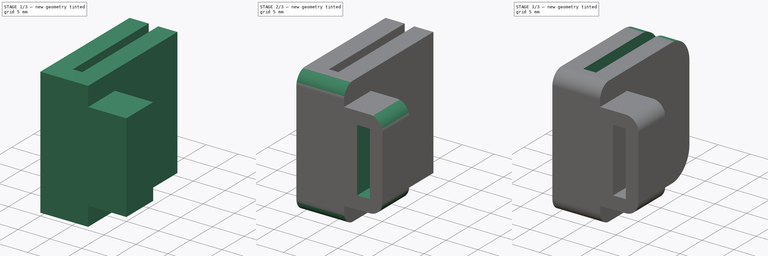
[diagram: build sequence overview — one tinted view per stage of 3, left to right]
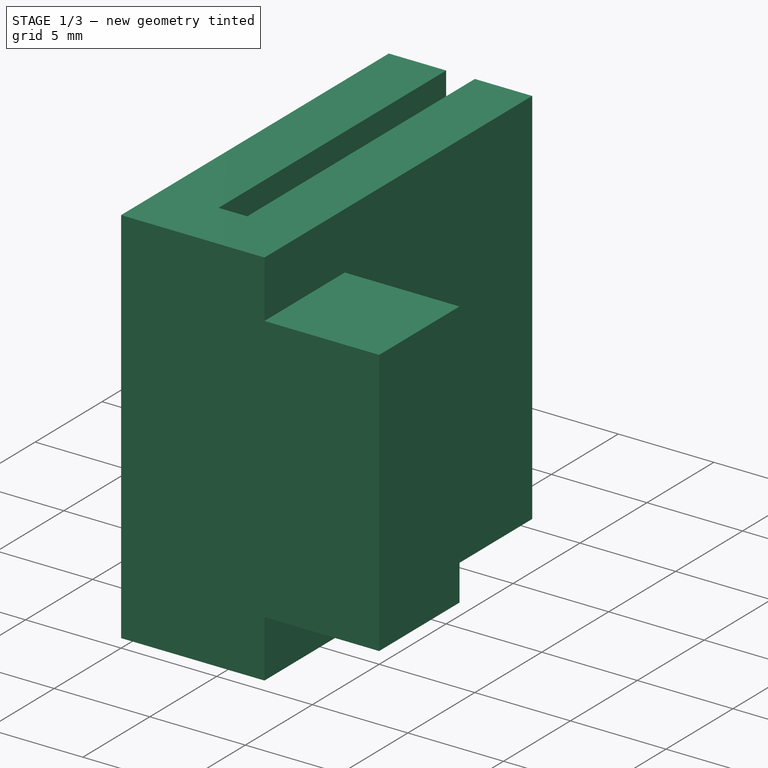
[diagram: stage 1 of 3 — iso view after this stage's code; geometry added in this stage tinted green]
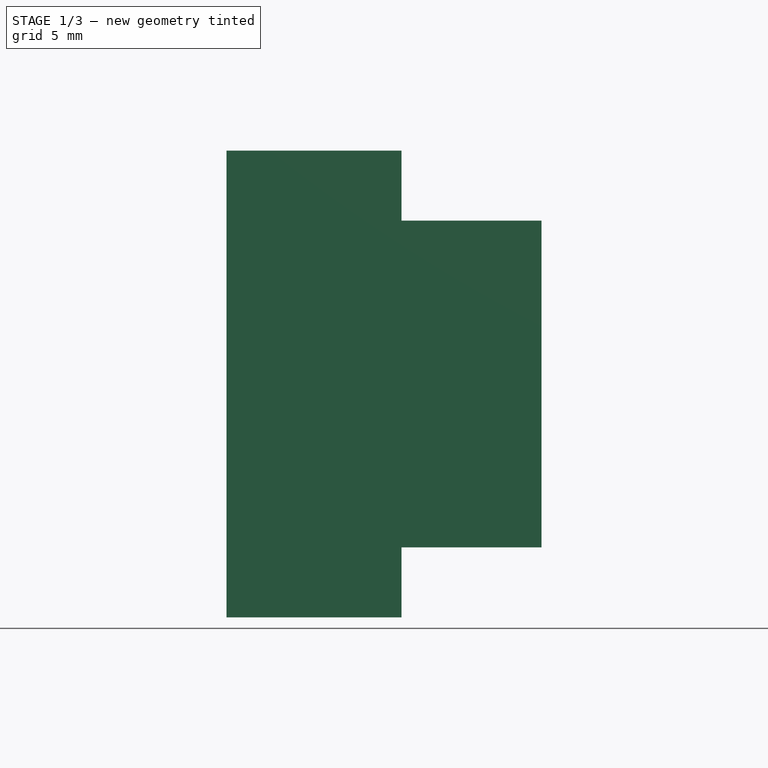
[diagram: stage 1 of 3 — front view after this stage's code; geometry added in this stage tinted green]
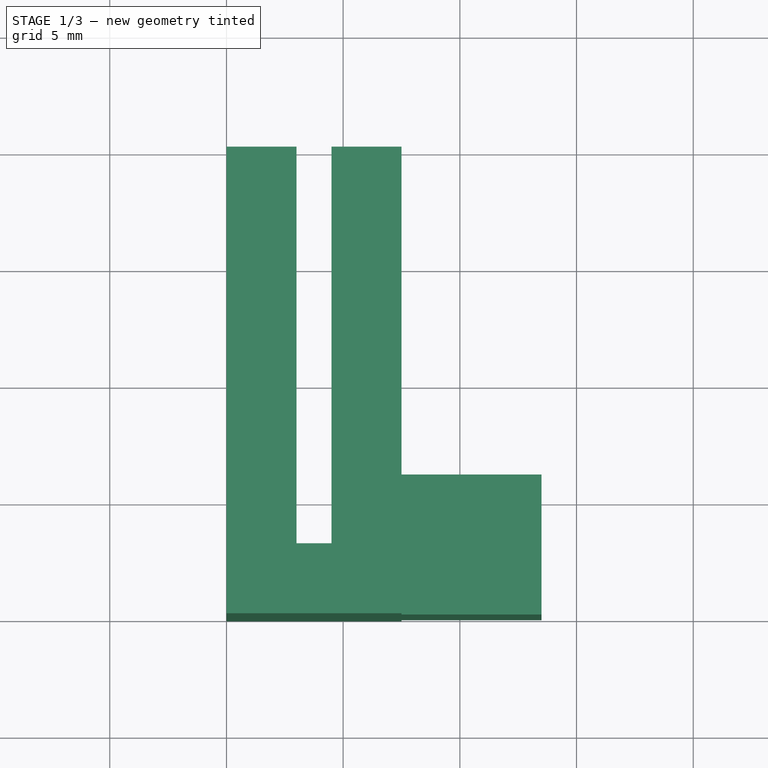
[diagram: stage 1 of 3 — top view after this stage's code; geometry added in this stage tinted green]
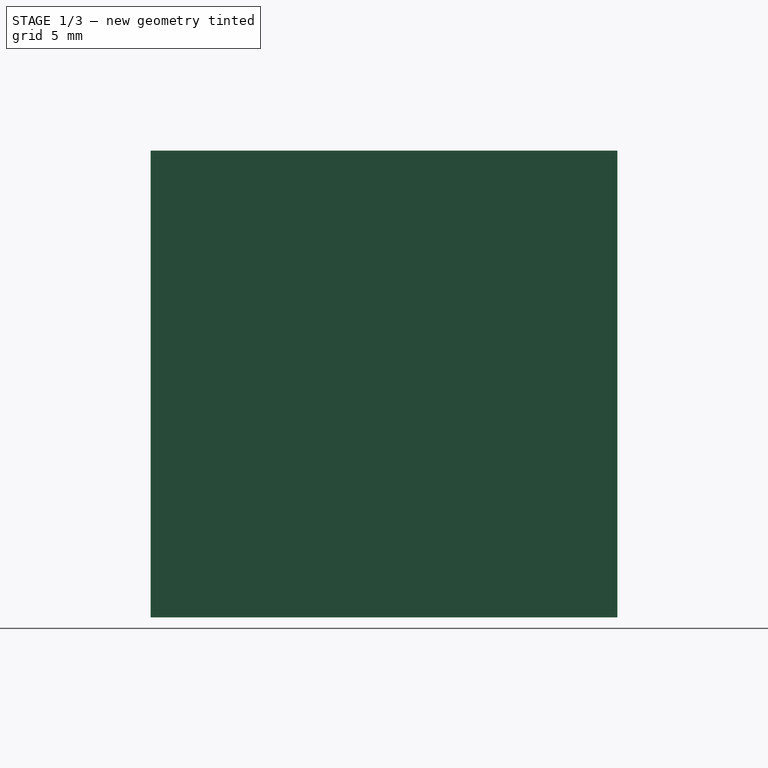
[diagram: stage 1 of 3 — right view after this stage's code; geometry added in this stage tinted green]
FCSTD DOCUMENT  (FreeCAD 0.20R29177 (Git))
Label: cabel_clips
License: All rights reserved
LicenseURL: http://en.wikipedia.org/wiki/All_rights_reserved
objects: Sketcher::SketchObject×4, PartDesign::Fillet×3, PartDesign::Pad×2, PartDesign::Pocket×2, PartDesign::Plane×1, PartDesign::Body×1
note: 20 computed .brp shape members not serialized (recipe doc carries the construction recipe); baked Part::Feature solids carry a one-line shape summary decoded from their .brp

FEATURE [Sketcher::SketchObject] Sketch
  FullyConstrained = true
  MapMode = 5
  Support = -> [XY_Plane]
  sketch-geometry (8):
    g0: LineSegment StartX=0 StartY=0 StartZ=0 EndX=0 EndY=20 EndZ=0
    g1: LineSegment StartX=0 StartY=20 StartZ=0 EndX=3 EndY=20 EndZ=0
    g2: LineSegment StartX=3 StartY=20 StartZ=0 EndX=3 EndY=3 EndZ=0
    g3: LineSegment StartX=3 StartY=3 StartZ=0 EndX=4.5 EndY=3 EndZ=0
    g4: LineSegment StartX=4.5 StartY=3 StartZ=0 EndX=4.5 EndY=20 EndZ=0
    g5: LineSegment StartX=4.5 StartY=20 StartZ=0 EndX=7.5 EndY=20 EndZ=0
    g6: LineSegment StartX=7.5 StartY=20 StartZ=0 EndX=7.5 EndY=0 EndZ=0
    g7: LineSegment StartX=7.5 StartY=0 StartZ=0 EndX=0 EndY=0 EndZ=0
  constraints (24):
    c: Coincident(g0,g-1)
    c: PointOnObject(g0,g-2)
    c: DistanceY(g0,g0) = 20
    c: Coincident(g1,g0)
    c: Horizontal(g1)
    c: Coincident(g2,g1)
    c: Vertical(g2)
    c: Coincident(g3,g2)
    c: Horizontal(g3)
    c: Vertical(g4)
    c: DistanceX(g1,g1) = 3
    c: Coincident(g5,g4)
    c: Horizontal(g5)
    c: DistanceX(g5,g5) = 3
    c: Coincident(g6,g5)
    c: PointOnObject(g6,g-1)
    c: Vertical(g6)
    c: Coincident(g7,g6)
    c: Coincident(g7,g0)
    c: DistanceX(g7,g7) = 7.5
    c: DistanceY(g6,g6) = 20
    c: DistanceY(g4,g4) = 17
    c: DistanceY(g2,g2) = 17
    c: DistanceX(g3,g3) = 1.5
FEATURE [PartDesign::Pad] Pad
  Direction = (0,0,1)
  Length = 20
  Length2 = 10
  Profile = -> Sketch
  ReferenceAxis = -> Sketch [N_Axis]
  Type = 0
FEATURE [Sketcher::SketchObject] Sketch001
  FullyConstrained = false
  MapMode = 5
  Placement = pos=(7.5,0,0) rot=(0.57735,0.57735,0.57735;2.0944rad)
  Support = -> [Pad]
  sketch-geometry (4):
    g0: LineSegment StartX=0 StartY=17 StartZ=0 EndX=6 EndY=17 EndZ=0
    g1: LineSegment StartX=6 StartY=17 StartZ=0 EndX=6 EndY=3 EndZ=0
    g2: LineSegment StartX=6 StartY=3 StartZ=0 EndX=0 EndY=3 EndZ=0
    g3: LineSegment StartX=0 StartY=3 StartZ=0 EndX=0 EndY=17 EndZ=0
  constraints (9):
    c: Coincident(g0,g1)
    c: Coincident(g1,g2)
    c: Coincident(g2,g3)
    c: Coincident(g3,g0)
    c: Horizontal(g0)
    c: Horizontal(g2)
    c: Vertical(g1)
    c: Vertical(g3)
    c: PointOnObject(g0,g-2)
FEATURE [PartDesign::Pad] Pad001
  BaseFeature = -> Pad
  Direction = (1,0,0)
  Length = 6
  Length2 = 10
  Profile = -> Sketch001
  ReferenceAxis = -> Sketch001 [N_Axis]
  Type = 0
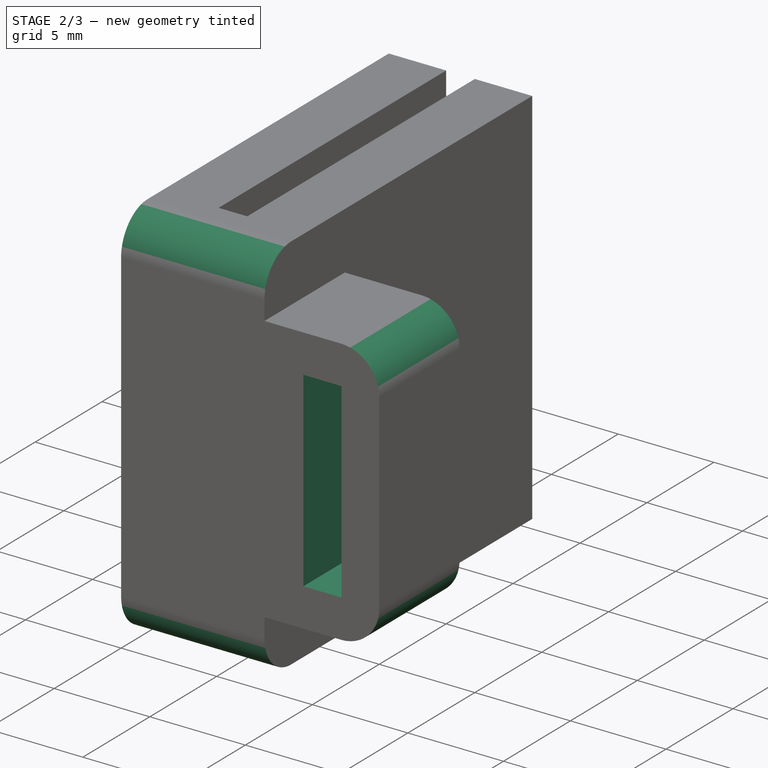
[diagram: stage 2 of 3 — iso view after this stage's code; geometry added in this stage tinted green]
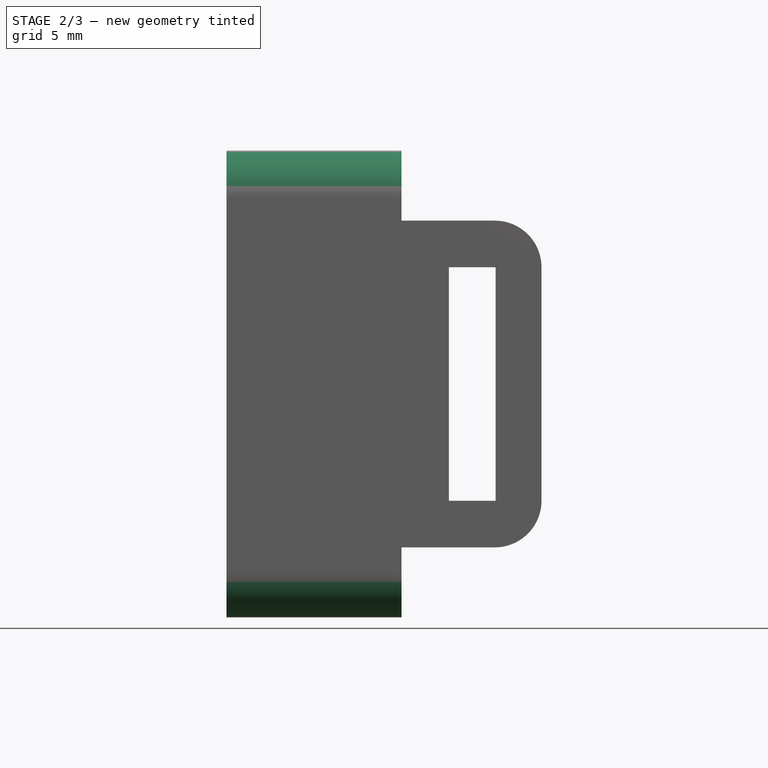
[diagram: stage 2 of 3 — front view after this stage's code; geometry added in this stage tinted green]
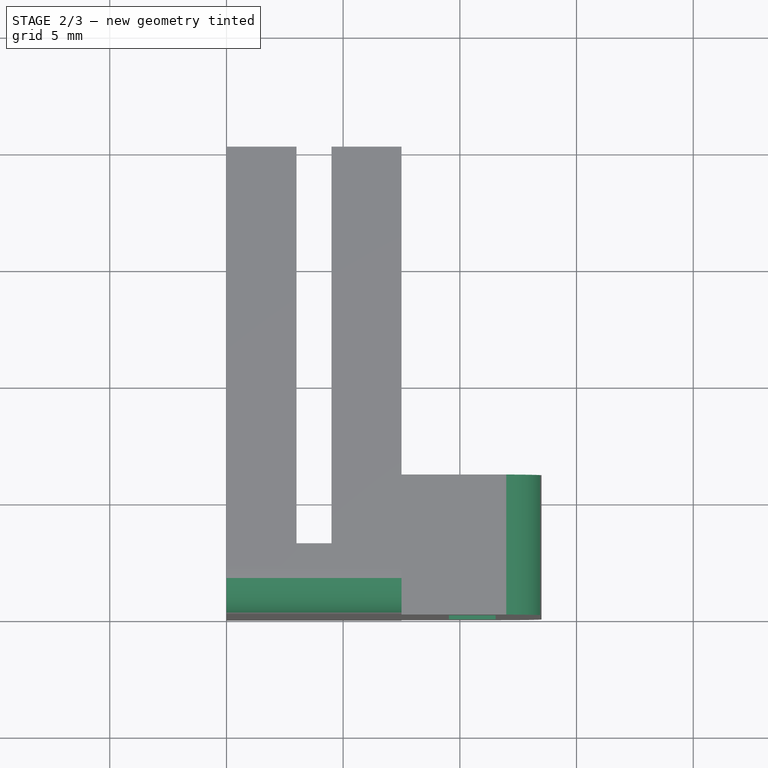
[diagram: stage 2 of 3 — top view after this stage's code; geometry added in this stage tinted green]
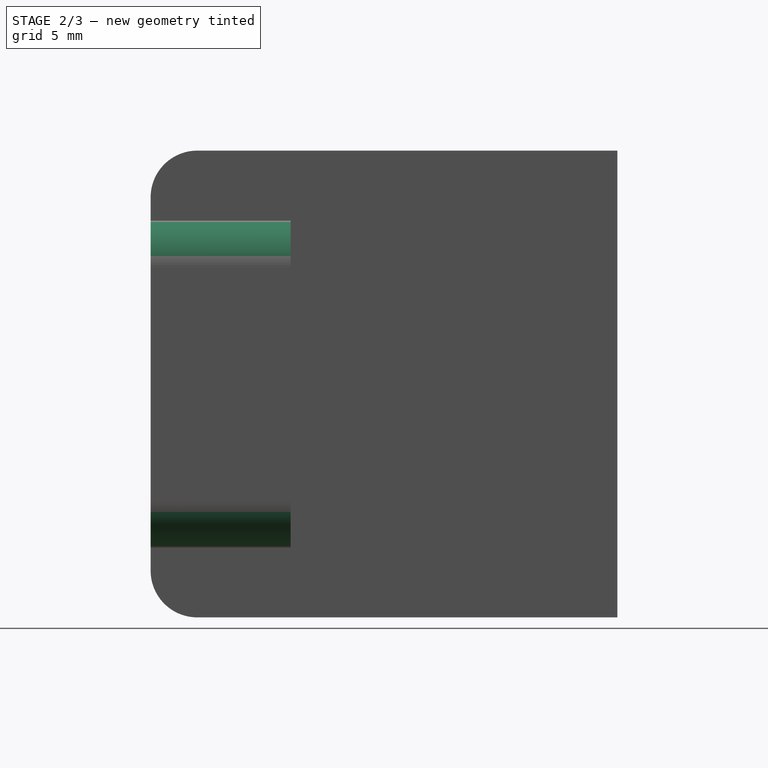
[diagram: stage 2 of 3 — right view after this stage's code; geometry added in this stage tinted green]
FEATURE [Sketcher::SketchObject] Sketch002
  FullyConstrained = false
  MapMode = 5
  Placement = pos=(0,0,0) rot=(1,0,0;1.5708rad)
  Support = -> [Pad001]
  sketch-geometry (4):
    g0: LineSegment StartX=9.53183 StartY=15 StartZ=0 EndX=11.5318 EndY=15 EndZ=0
    g1: LineSegment StartX=11.5318 StartY=15 StartZ=0 EndX=11.5318 EndY=5 EndZ=0
    g2: LineSegment StartX=11.5318 StartY=5 StartZ=0 EndX=9.53183 EndY=5 EndZ=0
    g3: LineSegment StartX=9.53183 StartY=5 StartZ=0 EndX=9.53183 EndY=15 EndZ=0
  constraints (10):
    c: Coincident(g0,g1)
    c: Coincident(g1,g2)
    c: Coincident(g2,g3)
    c: Coincident(g3,g0)
    c: Horizontal(g0)
    c: Horizontal(g2)
    c: Vertical(g1)
    c: Vertical(g3)
    c: DistanceX(g0,g0) = 2
    c: DistanceY(g1,g1) = 10
FEATURE [PartDesign::Pocket] Pocket
  BaseFeature = -> Pad001
  Direction = (0,1,-2e-16)
  Length = 10
  Length2 = 5
  Profile = -> Sketch002
  ReferenceAxis = -> Sketch002 [N_Axis]
  Type = 0
FEATURE [PartDesign::Fillet] Fillet
  Base = -> Pocket [Edge9,Edge8]
  BaseFeature = -> Pocket
  Radius = 2
  SupportTransform = false
  UseAllEdges = false
FEATURE [PartDesign::Fillet] Fillet001
  Base = -> Fillet [Edge51,Edge44]
  BaseFeature = -> Fillet
  Radius = 2
  SupportTransform = false
  UseAllEdges = false
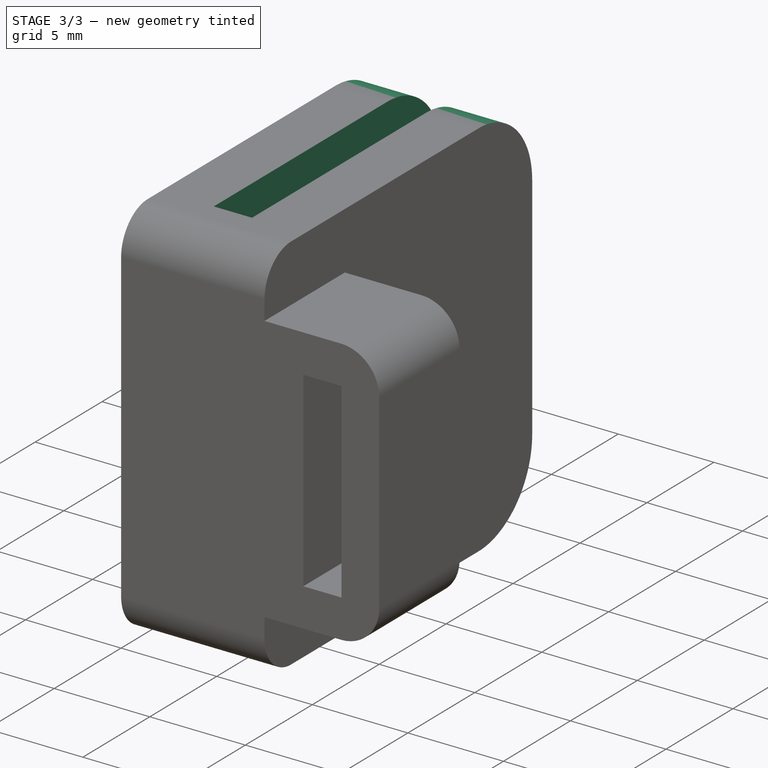
[diagram: stage 3 of 3 — iso view after this stage's code; geometry added in this stage tinted green]
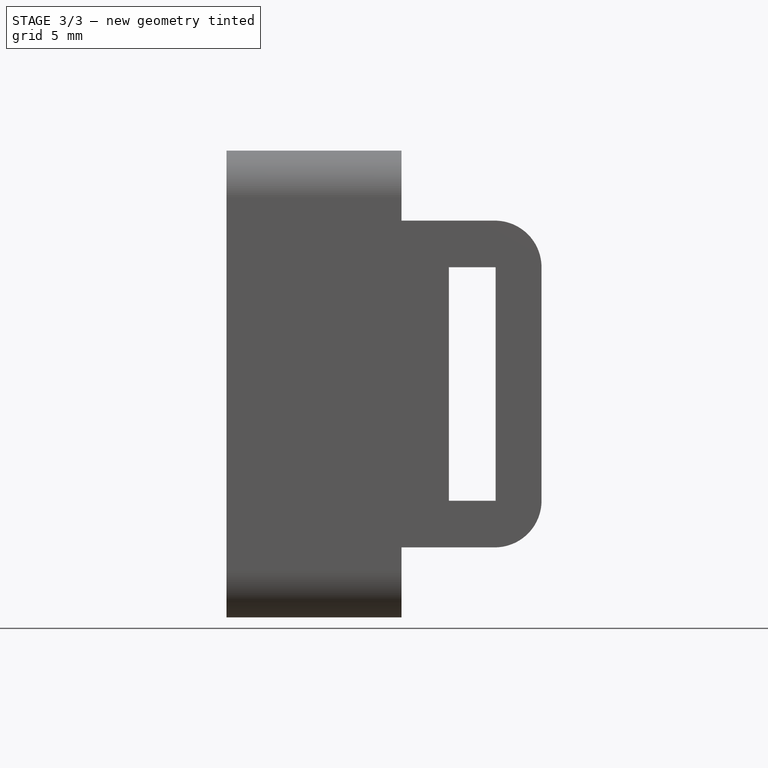
[diagram: stage 3 of 3 — front view after this stage's code; geometry added in this stage tinted green]
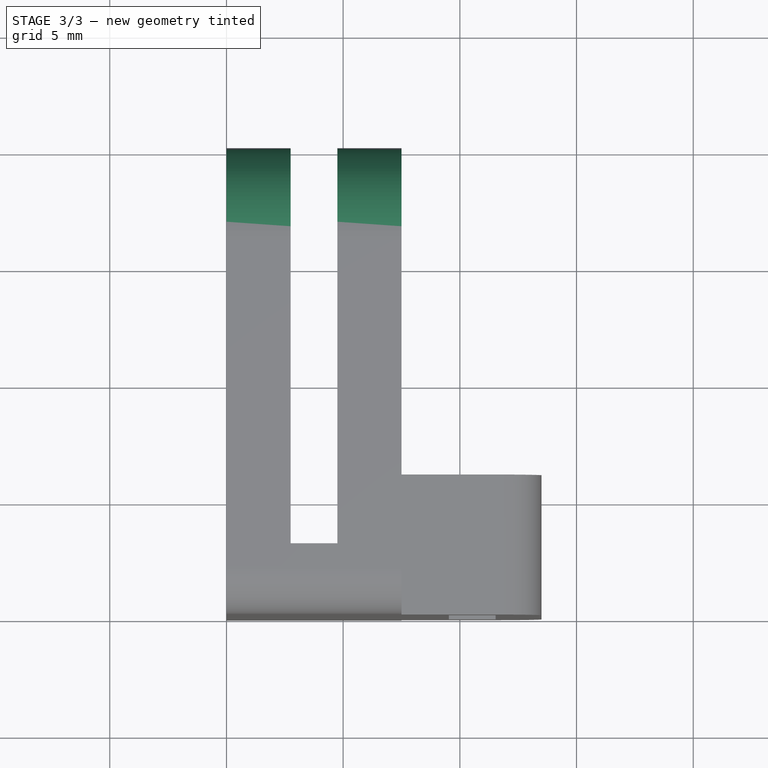
[diagram: stage 3 of 3 — top view after this stage's code; geometry added in this stage tinted green]
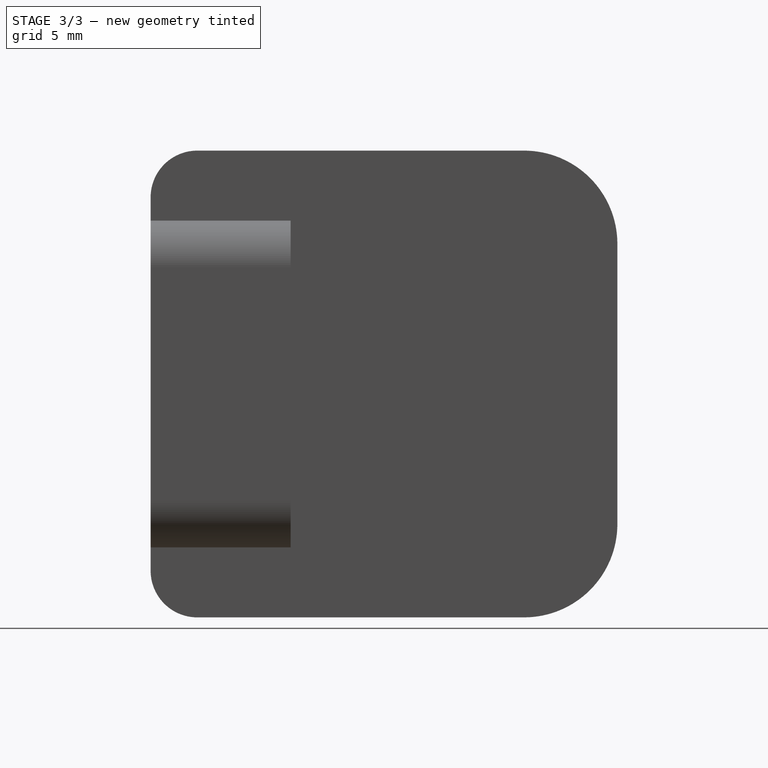
[diagram: stage 3 of 3 — right view after this stage's code; geometry added in this stage tinted green]
FEATURE [PartDesign::Fillet] Fillet002
  Base = -> Fillet001 [Edge55,Edge54,Edge50,Edge48]
  BaseFeature = -> Fillet001
  Radius = 4
  SupportTransform = false
  UseAllEdges = false
FEATURE [PartDesign::Plane] DatumPlane
  Length = 60
  MapMode = 5
  Placement = pos=(0,20,0) rot=(0,0.707107,0.707107;3.14159rad)
  ResizeMode = 0
  Support = -> [Fillet002]
  Width = 60
FEATURE [Sketcher::SketchObject] Sketch003
  FullyConstrained = false
  MapMode = 5
  Placement = pos=(0,20,0) rot=(0,0.707107,0.707107;3.14159rad)
  Support = -> [DatumPlane]
  sketch-geometry (4):
    g0: LineSegment StartX=-4.75 StartY=20 StartZ=0 EndX=-2.75 EndY=20 EndZ=0
    g1: LineSegment StartX=-2.75 StartY=20 StartZ=0 EndX=-2.75 EndY=0 EndZ=0
    g2: LineSegment StartX=-2.75 StartY=0 StartZ=0 EndX=-4.75 EndY=0 EndZ=0
    g3: LineSegment StartX=-4.75 StartY=0 StartZ=0 EndX=-4.75 EndY=20 EndZ=0
  constraints (8):
    c: Coincident(g0,g1)
    c: Coincident(g1,g2)
    c: Coincident(g2,g3)
    c: Coincident(g3,g0)
    c: Horizontal(g0)
    c: Horizontal(g2)
    c: Vertical(g1)
    c: Vertical(g3)
FEATURE [PartDesign::Pocket] Pocket001
  BaseFeature = -> Fillet002
  Direction = (0,-1,2e-16)
  Length = 17
  Length2 = 5
  Profile = -> Sketch003
  ReferenceAxis = -> Sketch003 [N_Axis]
  Type = 0
FEATURE [PartDesign::Body] Body
  Group = -> [Sketch,Pad,Sketch001,Pad001,Sketch002,Pocket,Fillet,Fillet001,Fillet002,DatumPlane,Sketch003,Pocket001]
  Origin = -> Origin
  Tip = -> Pocket001
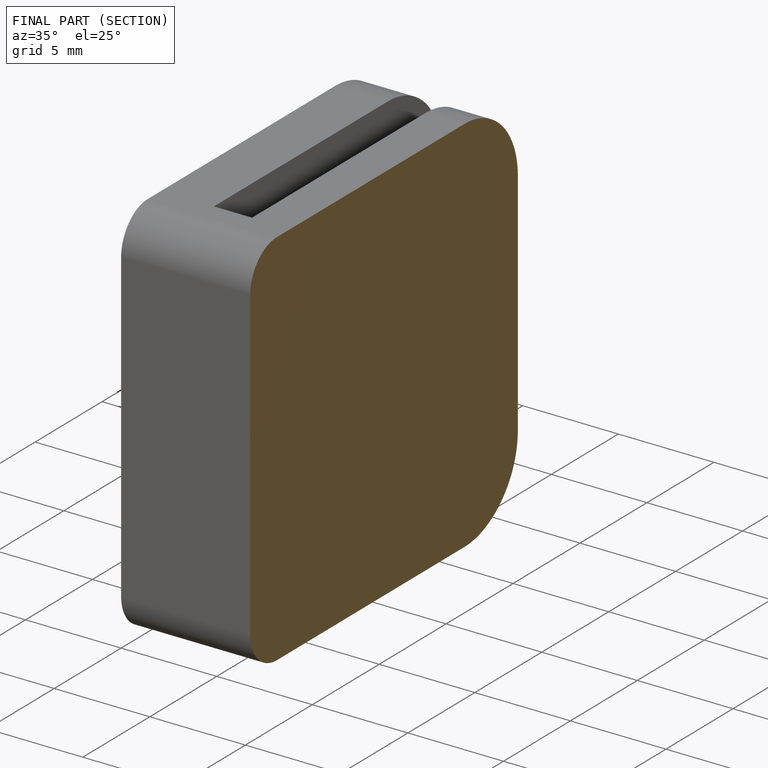
[diagram: finished part — half-section view (interior)]
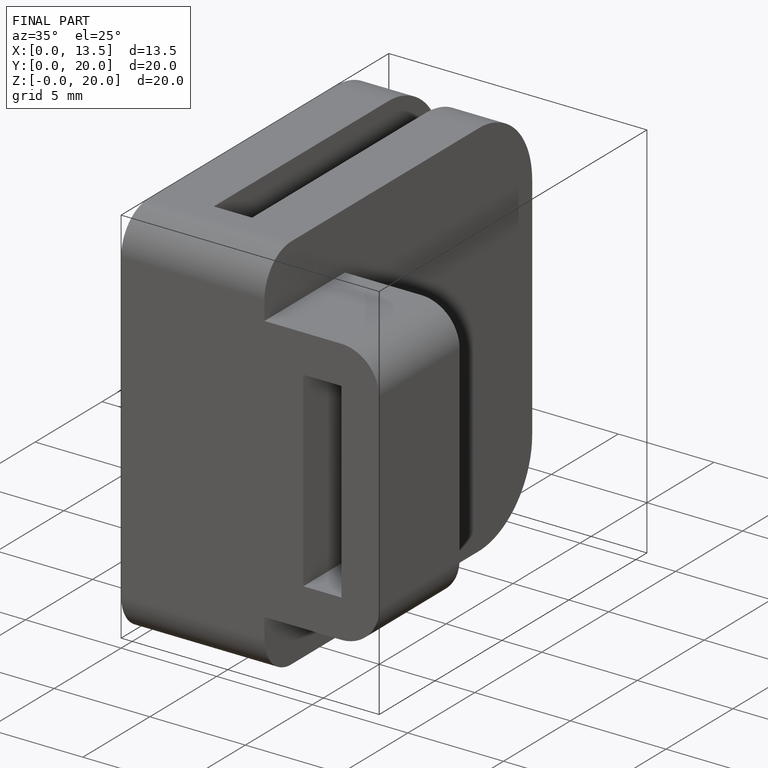
[diagram: finished part — iso view with bounding-box wireframe]
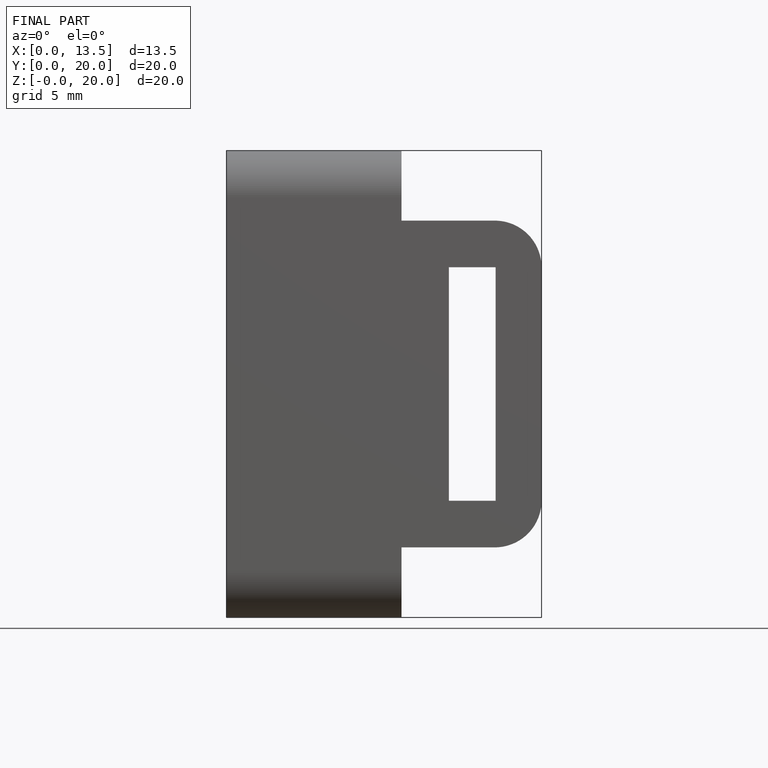
[diagram: finished part — front view with bounding-box wireframe]
